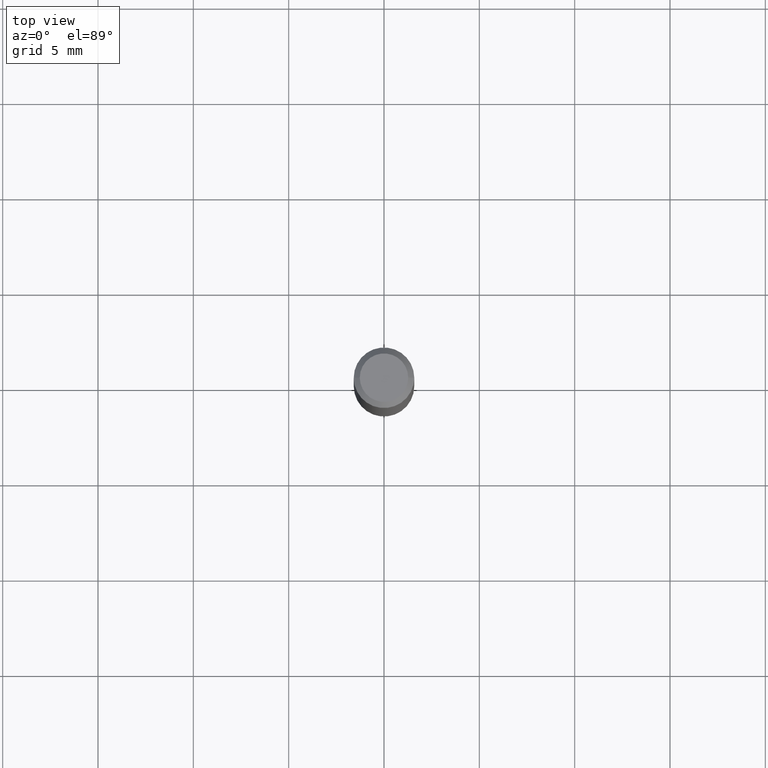
[diagram: clean part render]
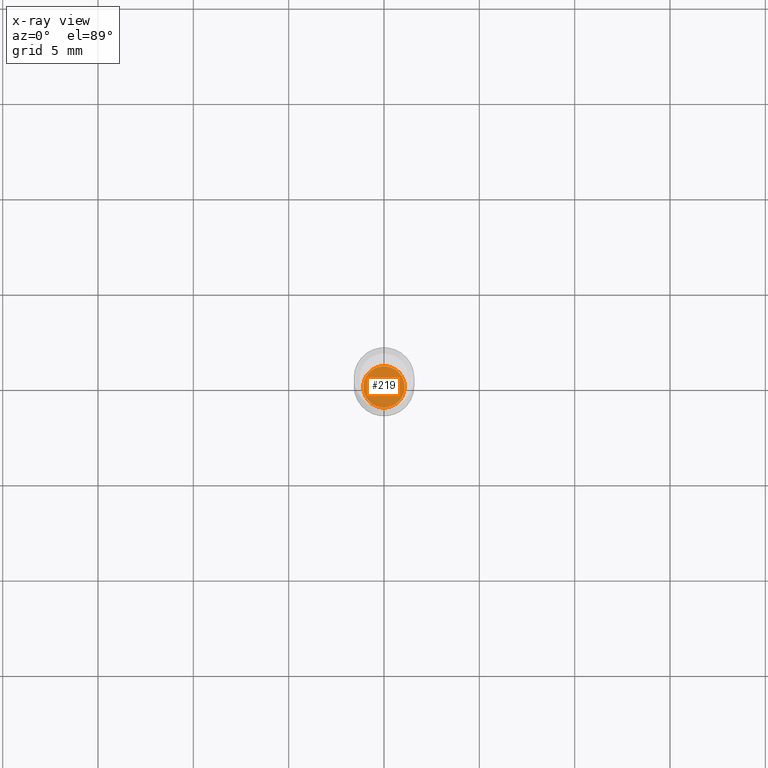
[diagram: x-ray — body ghosted, one internal face saturated and labeled with its STEP entity id]
A machine part, top view, then the same camera in x-ray: the body is ghosted and one INTERNAL B-rep face — a face not visible from any outside direction — is saturated and labeled: STEP entity #219.
In plain terms, the highlighted planar face has unit normal (-0, 0, 1).
Its self-contained STEP definition (entity closure, byte-faithful):
#11 = AXIS2_PLACEMENT_3D ( 'NONE', #51, #129, #61 ) ;
#23 = VERTEX_POINT ( 'NONE', #73 ) ;
#49 = DIRECTION ( 'NONE',  ( 1.000000000000000000, -6.982962677686265922E-15, 4.876176775795935793E-29 ) ) ;
#51 = CARTESIAN_POINT ( 'NONE',  ( 2.690015686803650369E-29, -3.840629472727460101E-15, -1.100000000000000089 ) ) ;
#61 = DIRECTION ( 'NONE',  ( 1.000000000000000000, -6.982962677686269077E-15, 0.000000000000000000 ) ) ;
#73 = CARTESIAN_POINT ( 'NONE',  ( 0.04279999999999998389, -4.139500275332432556E-15, -1.100000000000000089 ) ) ;
#129 = DIRECTION ( 'NONE',  ( -2.445468806185136597E-29, 3.491481338843145583E-15, 1.000000000000000000 ) ) ;
#169 = ORIENTED_EDGE ( 'NONE', *, *, #271, .F. ) ;
#208 = CARTESIAN_POINT ( 'NONE',  ( -0.04279999999999998389, -3.533867954648026776E-15, -1.100000000000000089 ) ) ;
#210 = CIRCLE ( 'NONE', #360, 0.04279999999999998389 ) ;
#211 = DIRECTION ( 'NONE',  ( 1.000000000000000000, -6.982962677686269077E-15, 0.000000000000000000 ) ) ;
#219 = ADVANCED_FACE ( 'NONE', ( #429 ), #276, .F. ) ;
#271 = EDGE_CURVE ( 'NONE', #23, #279, #210, .T. ) ;
#276 = PLANE ( 'NONE',  #299 ) ;
#279 = VERTEX_POINT ( 'NONE', #208 ) ;
#291 = EDGE_LOOP ( 'NONE', ( #169, #312 ) ) ;
#299 = AXIS2_PLACEMENT_3D ( 'NONE', #383, #346, #49 ) ;
#312 = ORIENTED_EDGE ( 'NONE', *, *, #412, .F. ) ;
#346 = DIRECTION ( 'NONE',  ( -2.438088387897960049E-29, 3.491481338843145188E-15, 1.000000000000000000 ) ) ;
#360 = AXIS2_PLACEMENT_3D ( 'NONE', #437, #478, #211 ) ;
#368 = CIRCLE ( 'NONE', #11, 0.04279999999999998389 ) ;
#383 = CARTESIAN_POINT ( 'NONE',  ( 2.690015686803650369E-29, -3.840629472727460101E-15, -1.100000000000000089 ) ) ;
#412 = EDGE_CURVE ( 'NONE', #279, #23, #368, .T. ) ;
#429 = FACE_OUTER_BOUND ( 'NONE', #291, .T. ) ;
#437 = CARTESIAN_POINT ( 'NONE',  ( 2.690015686803650369E-29, -3.840629472727460101E-15, -1.100000000000000089 ) ) ;
#478 = DIRECTION ( 'NONE',  ( -2.445468806185136597E-29, 3.491481338843145583E-15, 1.000000000000000000 ) ) ;